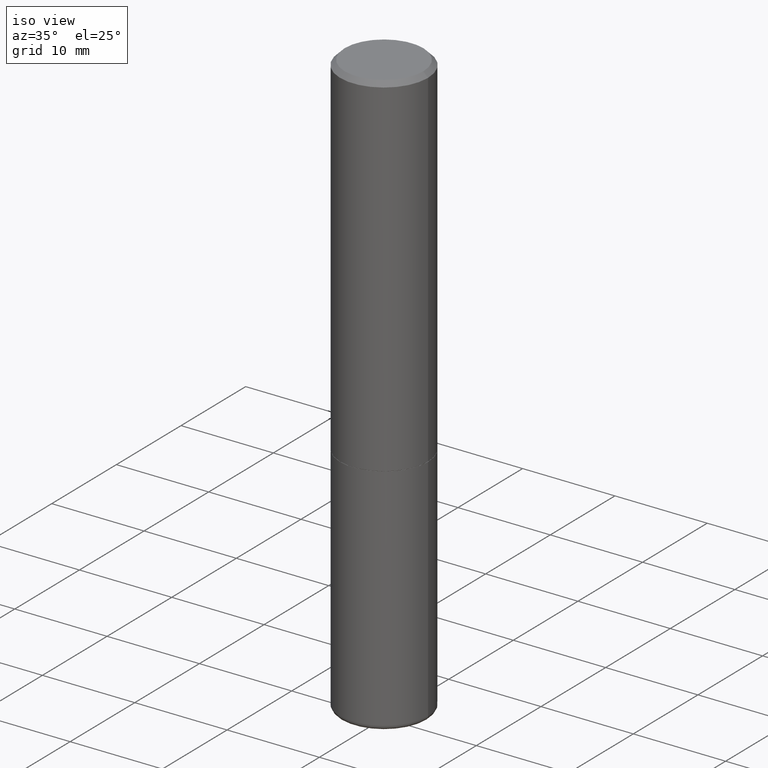
[diagram: clean part render]
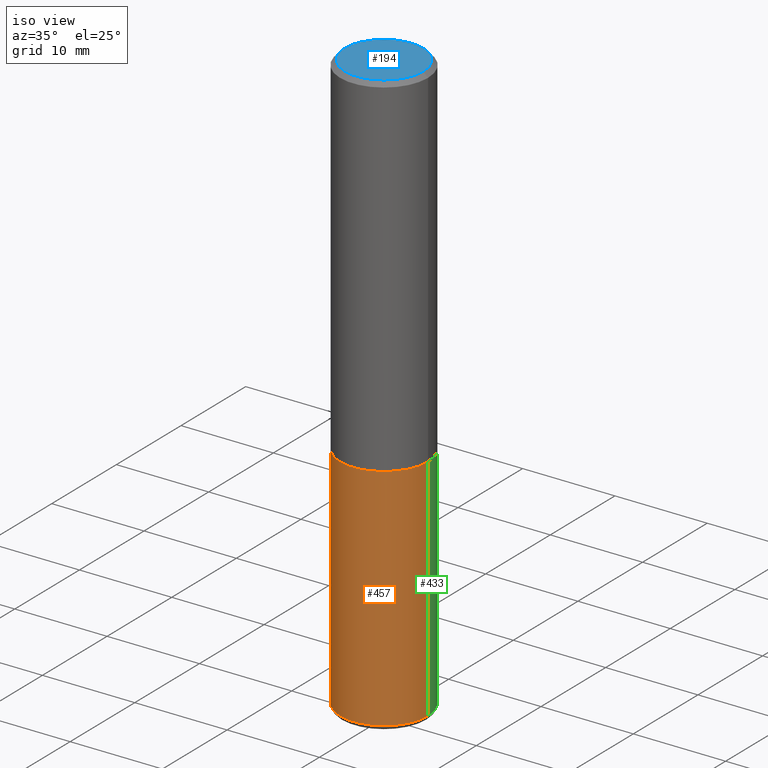
[diagram: same view with three faces highlighted in distinct colors, each labeled with its STEP entity id]
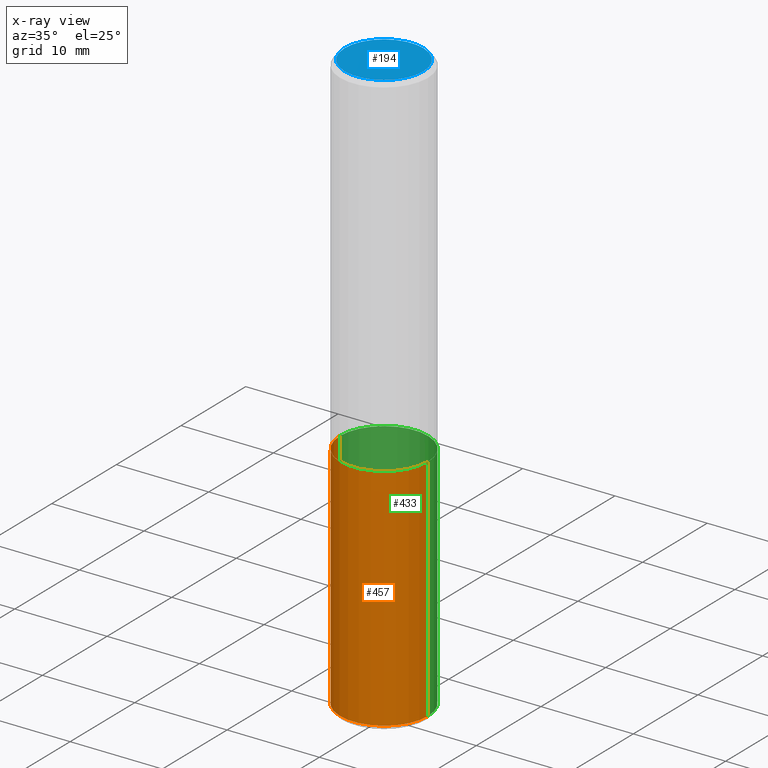
[diagram: x-ray of the same camera — body ghosted, the three highlighted faces saturated]
A machine part, iso view with three faces highlighted in distinct colors.
The next image is the same camera in x-ray (body ghosted, the three faces saturated) — at least one of them is partly hidden behind the body in this view.
Their STEP definitions:

[orange] entity #457 — the highlighted cylindrical surface (partial cylindrical patch) has radius 4.7625 mm, axis along (-0, 0, 1).
#24 = LINE ( 'NONE', #149, #365 ) ;
#36 = DIRECTION ( 'NONE',  ( 1.000000000000000000, -6.982962677686266711E-15, 0.000000000000000000 ) ) ;
#48 = VECTOR ( 'NONE', #83, 39.37007874015748143 ) ;
#81 = DIRECTION ( 'NONE',  ( -2.445468806185136597E-29, 3.491481338843145583E-15, 1.000000000000000000 ) ) ;
#83 = DIRECTION ( 'NONE',  ( -2.445468806185136877E-29, 3.491481338843145188E-15, 1.000000000000000000 ) ) ;
#84 = CARTESIAN_POINT ( 'NONE',  ( 3.668203209277706016E-29, -5.237222008264719754E-15, -1.500000000000000444 ) ) ;
#85 = CYLINDRICAL_SURFACE ( 'NONE', #190, 0.1874999999999995837 ) ;
#99 = EDGE_LOOP ( 'NONE', ( #291, #351, #241, #217 ) ) ;
#103 = AXIS2_PLACEMENT_3D ( 'NONE', #84, #274, #337 ) ;
#110 = EDGE_CURVE ( 'NONE', #234, #465, #249, .T. ) ;
#149 = CARTESIAN_POINT ( 'NONE',  ( -0.1874999999999995837, 1.332267629550184890E-15, -9.223003294227928372E-30 ) ) ;
#190 = AXIS2_PLACEMENT_3D ( 'NONE', #376, #81, #335 ) ;
#211 = EDGE_CURVE ( 'NONE', #332, #234, #24, .T. ) ;
#215 = VERTEX_POINT ( 'NONE', #480 ) ;
#217 = ORIENTED_EDGE ( 'NONE', *, *, #110, .F. ) ;
#231 = DIRECTION ( 'NONE',  ( -2.445468806185136597E-29, 3.491481338843145583E-15, 1.000000000000000000 ) ) ;
#234 = VERTEX_POINT ( 'NONE', #252 ) ;
#241 = ORIENTED_EDGE ( 'NONE', *, *, #344, .T. ) ;
#249 = CIRCLE ( 'NONE', #103, 0.1874999999999996392 ) ;
#252 = CARTESIAN_POINT ( 'NONE',  ( -0.1874999999999996392, -5.615781564196784615E-15, -1.500000000000000444 ) ) ;
#265 = CARTESIAN_POINT ( 'NONE',  ( 0.1874999999999996392, -6.546527510330891607E-15, -1.500000000000000444 ) ) ;
#269 = FACE_OUTER_BOUND ( 'NONE', #99, .T. ) ;
#273 = CIRCLE ( 'NONE', #358, 0.1874999999999995004 ) ;
#274 = DIRECTION ( 'NONE',  ( -2.445468806185136597E-29, 3.491481338843145583E-15, 1.000000000000000000 ) ) ;
#291 = ORIENTED_EDGE ( 'NONE', *, *, #211, .F. ) ;
#321 = CARTESIAN_POINT ( 'NONE',  ( -0.1874999999999995004, -5.615781564196785403E-15, -2.480000761538716958 ) ) ;
#332 = VERTEX_POINT ( 'NONE', #321 ) ;
#333 = CARTESIAN_POINT ( 'NONE',  ( 6.064764501658314522E-29, -8.658876379229219650E-15, -2.480000761538716958 ) ) ;
#335 = DIRECTION ( 'NONE',  ( 1.000000000000000000, -6.982962677686266711E-15, 4.876176775795935232E-29 ) ) ;
#337 = DIRECTION ( 'NONE',  ( 1.000000000000000000, -6.982962677686266711E-15, 0.000000000000000000 ) ) ;
#344 = EDGE_CURVE ( 'NONE', #215, #465, #476, .T. ) ;
#351 = ORIENTED_EDGE ( 'NONE', *, *, #419, .T. ) ;
#358 = AXIS2_PLACEMENT_3D ( 'NONE', #333, #231, #36 ) ;
#365 = VECTOR ( 'NONE', #373, 39.37007874015748143 ) ;
#373 = DIRECTION ( 'NONE',  ( -2.445468806185136877E-29, 3.491481338843145188E-15, 1.000000000000000000 ) ) ;
#376 = CARTESIAN_POINT ( 'NONE',  ( 0.000000000000000000, 0.000000000000000000, 0.000000000000000000 ) ) ;
#419 = EDGE_CURVE ( 'NONE', #332, #215, #273, .T. ) ;
#441 = CARTESIAN_POINT ( 'NONE',  ( 0.1874999999999995837, -1.309305502066172050E-15, 9.142831454617358592E-30 ) ) ;
#457 = ADVANCED_FACE ( 'NONE', ( #269 ), #85, .T. ) ;
#465 = VERTEX_POINT ( 'NONE', #265 ) ;
#476 = LINE ( 'NONE', #441, #48 ) ;
#480 = CARTESIAN_POINT ( 'NONE',  ( 0.1874999999999995004, -9.968181881295391502E-15, -2.480000761538716958 ) ) ;

[blue] entity #194 — the highlighted planar face has unit normal (0, -0, -1).
#3 = CIRCLE ( 'NONE', #235, 0.1674999999999994549 ) ;
#40 = DIRECTION ( 'NONE',  ( 1.000000000000000000, -6.982962677686265133E-15, 4.875370901645456883E-29 ) ) ;
#50 = DIRECTION ( 'NONE',  ( 1.000000000000000000, -6.982962677686265133E-15, 4.875370901645456883E-29 ) ) ;
#58 = VERTEX_POINT ( 'NONE', #75 ) ;
#64 = FACE_OUTER_BOUND ( 'NONE', #159, .T. ) ;
#72 = CARTESIAN_POINT ( 'NONE',  ( 1.169646248512445651E-15, 0.1674999999999994549, -6.040314304616767177E-16 ) ) ;
#75 = CARTESIAN_POINT ( 'NONE',  ( -0.1674999999999994549, 1.204561061900876905E-15, -3.841661241091200612E-17 ) ) ;
#76 = CARTESIAN_POINT ( 'NONE',  ( 0.1674999999999994549, -1.252653207992875133E-15, -3.841661241089523050E-17 ) ) ;
#124 = CARTESIAN_POINT ( 'NONE',  ( 9.394662729016977403E-46, -1.341308853342402453E-31, -3.841661241090370459E-17 ) ) ;
#133 = ORIENTED_EDGE ( 'NONE', *, *, #152, .T. ) ;
#152 = EDGE_CURVE ( 'NONE', #429, #58, #470, .T. ) ;
#159 = EDGE_LOOP ( 'NONE', ( #475, #133 ) ) ;
#194 = ADVANCED_FACE ( 'NONE', ( #64 ), #443, .F. ) ;
#214 = DIRECTION ( 'NONE',  ( 2.438088387897960049E-29, -3.491481338843145188E-15, -1.000000000000000000 ) ) ;
#235 = AXIS2_PLACEMENT_3D ( 'NONE', #124, #264, #40 ) ;
#239 = CARTESIAN_POINT ( 'NONE',  ( 9.394662729016977403E-46, -1.341308853342402453E-31, -3.841661241090370459E-17 ) ) ;
#257 = AXIS2_PLACEMENT_3D ( 'NONE', #72, #214, #287 ) ;
#264 = DIRECTION ( 'NONE',  ( -2.445468806185136597E-29, 3.491481338843145583E-15, 1.000000000000000000 ) ) ;
#287 = DIRECTION ( 'NONE',  ( -1.000000000000000000, 6.982962677686265922E-15, -4.876176775795935793E-29 ) ) ;
#349 = EDGE_CURVE ( 'NONE', #58, #429, #3, .T. ) ;
#388 = DIRECTION ( 'NONE',  ( -2.445468806185136597E-29, 3.491481338843145583E-15, 1.000000000000000000 ) ) ;
#421 = AXIS2_PLACEMENT_3D ( 'NONE', #239, #388, #50 ) ;
#429 = VERTEX_POINT ( 'NONE', #76 ) ;
#443 = PLANE ( 'NONE',  #257 ) ;
#470 = CIRCLE ( 'NONE', #421, 0.1674999999999994549 ) ;
#475 = ORIENTED_EDGE ( 'NONE', *, *, #349, .T. ) ;

[green] entity #433 — the highlighted cylindrical surface (partial cylindrical patch) has radius 4.7625 mm, axis along (-0, 0, 1).
#6 = DIRECTION ( 'NONE',  ( 1.000000000000000000, -6.982962677686266711E-15, 0.000000000000000000 ) ) ;
#19 = ORIENTED_EDGE ( 'NONE', *, *, #211, .T. ) ;
#20 = CARTESIAN_POINT ( 'NONE',  ( 6.064764501658314522E-29, -8.658876379229219650E-15, -2.480000761538716958 ) ) ;
#24 = LINE ( 'NONE', #149, #365 ) ;
#44 = DIRECTION ( 'NONE',  ( -2.445468806185136597E-29, 3.491481338843145583E-15, 1.000000000000000000 ) ) ;
#48 = VECTOR ( 'NONE', #83, 39.37007874015748143 ) ;
#83 = DIRECTION ( 'NONE',  ( -2.445468806185136877E-29, 3.491481338843145188E-15, 1.000000000000000000 ) ) ;
#89 = EDGE_CURVE ( 'NONE', #465, #234, #356, .T. ) ;
#134 = CARTESIAN_POINT ( 'NONE',  ( 3.668203209277706016E-29, -5.237222008264719754E-15, -1.500000000000000444 ) ) ;
#136 = EDGE_LOOP ( 'NONE', ( #220, #19, #208, #262 ) ) ;
#149 = CARTESIAN_POINT ( 'NONE',  ( -0.1874999999999995837, 1.332267629550184890E-15, -9.223003294227928372E-30 ) ) ;
#163 = CARTESIAN_POINT ( 'NONE',  ( 0.000000000000000000, 0.000000000000000000, 0.000000000000000000 ) ) ;
#169 = CIRCLE ( 'NONE', #437, 0.1874999999999995004 ) ;
#180 = DIRECTION ( 'NONE',  ( -2.445468806185136597E-29, 3.491481338843145583E-15, 1.000000000000000000 ) ) ;
#193 = CYLINDRICAL_SURFACE ( 'NONE', #389, 0.1874999999999995837 ) ;
#195 = FACE_OUTER_BOUND ( 'NONE', #136, .T. ) ;
#197 = EDGE_CURVE ( 'NONE', #215, #332, #169, .T. ) ;
#208 = ORIENTED_EDGE ( 'NONE', *, *, #89, .F. ) ;
#211 = EDGE_CURVE ( 'NONE', #332, #234, #24, .T. ) ;
#215 = VERTEX_POINT ( 'NONE', #480 ) ;
#220 = ORIENTED_EDGE ( 'NONE', *, *, #197, .T. ) ;
#234 = VERTEX_POINT ( 'NONE', #252 ) ;
#252 = CARTESIAN_POINT ( 'NONE',  ( -0.1874999999999996392, -5.615781564196784615E-15, -1.500000000000000444 ) ) ;
#262 = ORIENTED_EDGE ( 'NONE', *, *, #344, .F. ) ;
#265 = CARTESIAN_POINT ( 'NONE',  ( 0.1874999999999996392, -6.546527510330891607E-15, -1.500000000000000444 ) ) ;
#321 = CARTESIAN_POINT ( 'NONE',  ( -0.1874999999999995004, -5.615781564196785403E-15, -2.480000761538716958 ) ) ;
#330 = DIRECTION ( 'NONE',  ( 1.000000000000000000, -6.982962677686266711E-15, 0.000000000000000000 ) ) ;
#332 = VERTEX_POINT ( 'NONE', #321 ) ;
#344 = EDGE_CURVE ( 'NONE', #215, #465, #476, .T. ) ;
#356 = CIRCLE ( 'NONE', #460, 0.1874999999999996392 ) ;
#365 = VECTOR ( 'NONE', #373, 39.37007874015748143 ) ;
#373 = DIRECTION ( 'NONE',  ( -2.445468806185136877E-29, 3.491481338843145188E-15, 1.000000000000000000 ) ) ;
#389 = AXIS2_PLACEMENT_3D ( 'NONE', #163, #417, #464 ) ;
#417 = DIRECTION ( 'NONE',  ( -2.445468806185136597E-29, 3.491481338843145583E-15, 1.000000000000000000 ) ) ;
#433 = ADVANCED_FACE ( 'NONE', ( #195 ), #193, .T. ) ;
#437 = AXIS2_PLACEMENT_3D ( 'NONE', #20, #180, #330 ) ;
#441 = CARTESIAN_POINT ( 'NONE',  ( 0.1874999999999995837, -1.309305502066172050E-15, 9.142831454617358592E-30 ) ) ;
#460 = AXIS2_PLACEMENT_3D ( 'NONE', #134, #44, #6 ) ;
#464 = DIRECTION ( 'NONE',  ( 1.000000000000000000, -6.982962677686266711E-15, 4.876176775795935232E-29 ) ) ;
#465 = VERTEX_POINT ( 'NONE', #265 ) ;
#476 = LINE ( 'NONE', #441, #48 ) ;
#480 = CARTESIAN_POINT ( 'NONE',  ( 0.1874999999999995004, -9.968181881295391502E-15, -2.480000761538716958 ) ) ;